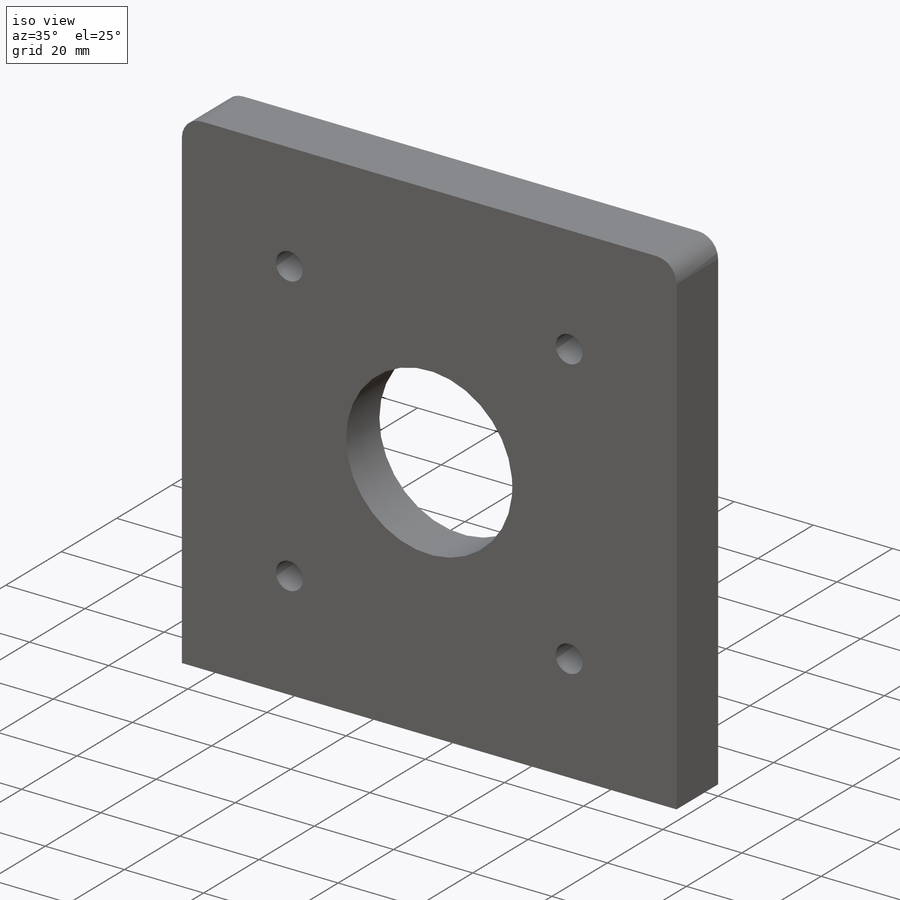
[diagram: iso view]
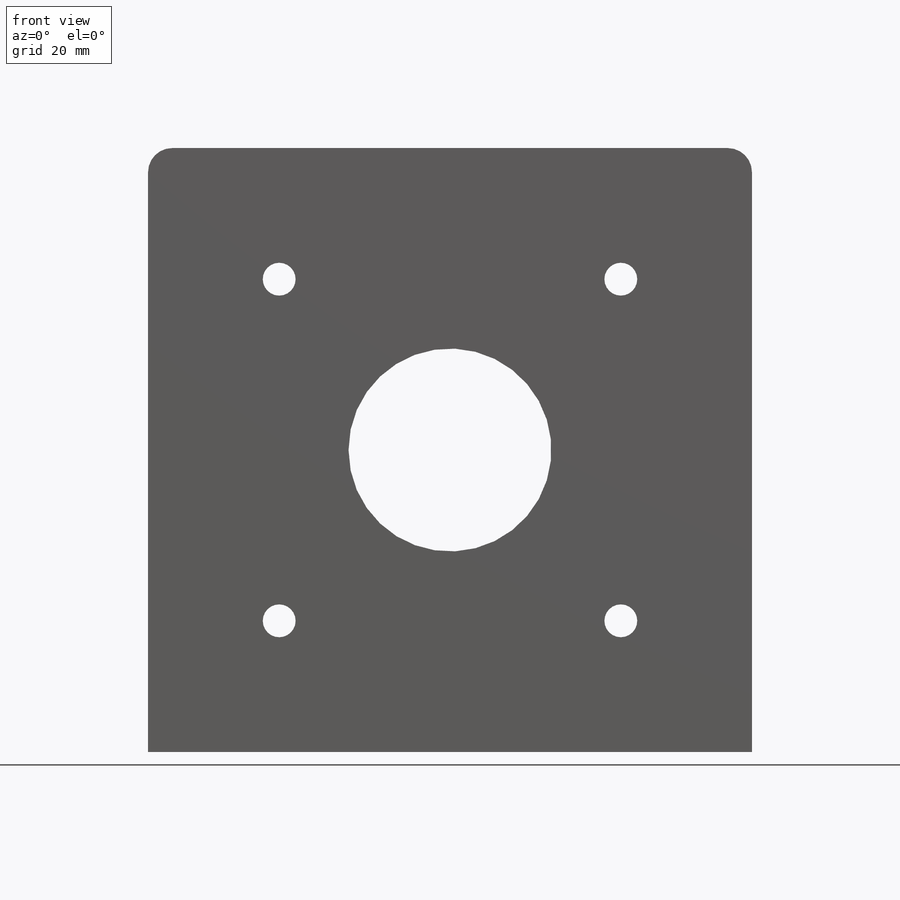
[diagram: front view]
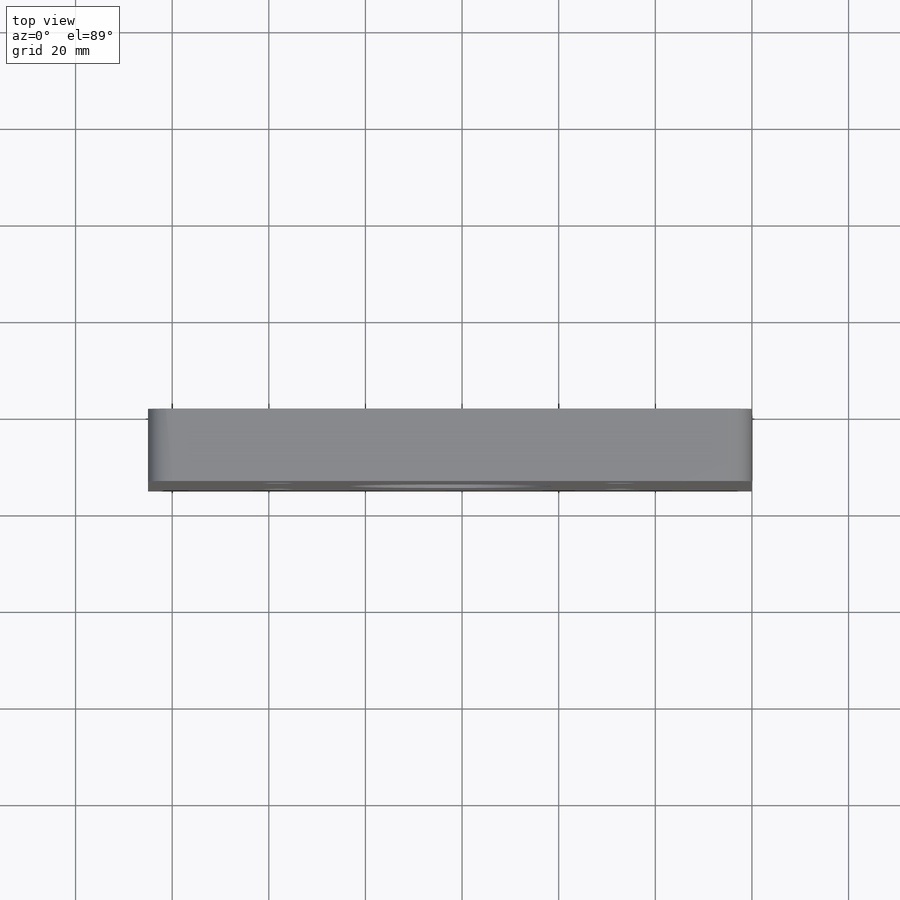
[diagram: top view]
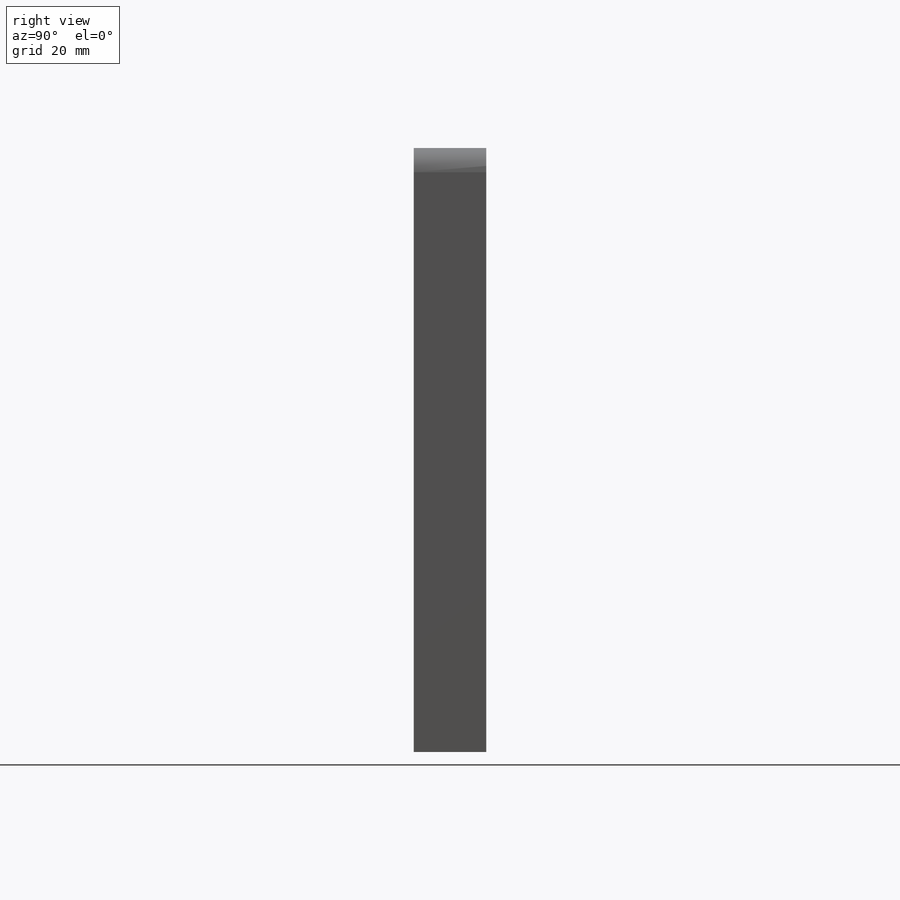
[diagram: right view]
SOLIDWORKS PART (.sldprt)
format: sldprt  version: not decoded by parser v0  size: 242,176 bytes
history: native  units: mm
features: sketch x5, thread x4, plane x3, cut_extrude x2, material x1, extrude x1, fillet x1, hole x1 + 1 further entry (+9 scaffold rows collapsed)
feature tree (28):
  scaffold x9  (default folders/planes/origin — collapsed)
  material  "Matériau <non spécifié>"
  "Annotations"  RD1=27.144661mm RD2=27.144661mm RD3=27.144661mm
  plane  "Plan de face"
  plane  "Plan de dessus"
  plane  "Plan de droite"
  sketch  "Esquisse1"  dims[D1=125.0mm D2=125.0mm]
  extrude  "Boss.-Extru.1"  Depth=15mm
  sketch  "Esquisse2"  dims[c1.D1=25.0mm c1.D2=62.5mm c2.D1=62.5mm]
  cut_extrude  "Enlèv. mat.-Extru.1"  Depth=3mm
  fillet  "Congé1"  Radius=5mm
  sketch  "Esquisse11"  dims[D1=~12.716066mm]
  cut_extrude  "Enlèv. mat.-Extru.2"  Depth=15mm
  hole  "Trou taraudé M81"  Diameter=6.8mm Depth=22.25mm
  sketch  "Esquisse13"
  sketch  "Esquisse12"  dims[hole-wizard template sketch: 46 standard entries collapsed; hole parameters kept: c15.Diamètre du trou pour taraudage=6.8mm c15.Profondeur du trou pour taraudage=22.25mm c15.D3=~14.816244mm c15.Angle de pointe=118.0deg]
  thread  "Filetage de perçage1"  Diameter=15mm  [1 undecoded]
  thread  "Filetage de perçage2"  Diameter=15mm  [1 undecoded]
  thread  "Filetage de perçage3"  Diameter=15mm  [1 undecoded]
  thread  "Filetage de perçage4"  Diameter=15mm  [1 undecoded]
decode coverage: 13 of 14 modeling features carry decoded parameters; 1 rows unclassified (native names shown)
note: ~ marks probable driven/reference dimensions
note: 4 parameter values undecoded
note: suppression state not decoded; provenance and decode notes live in map.json
